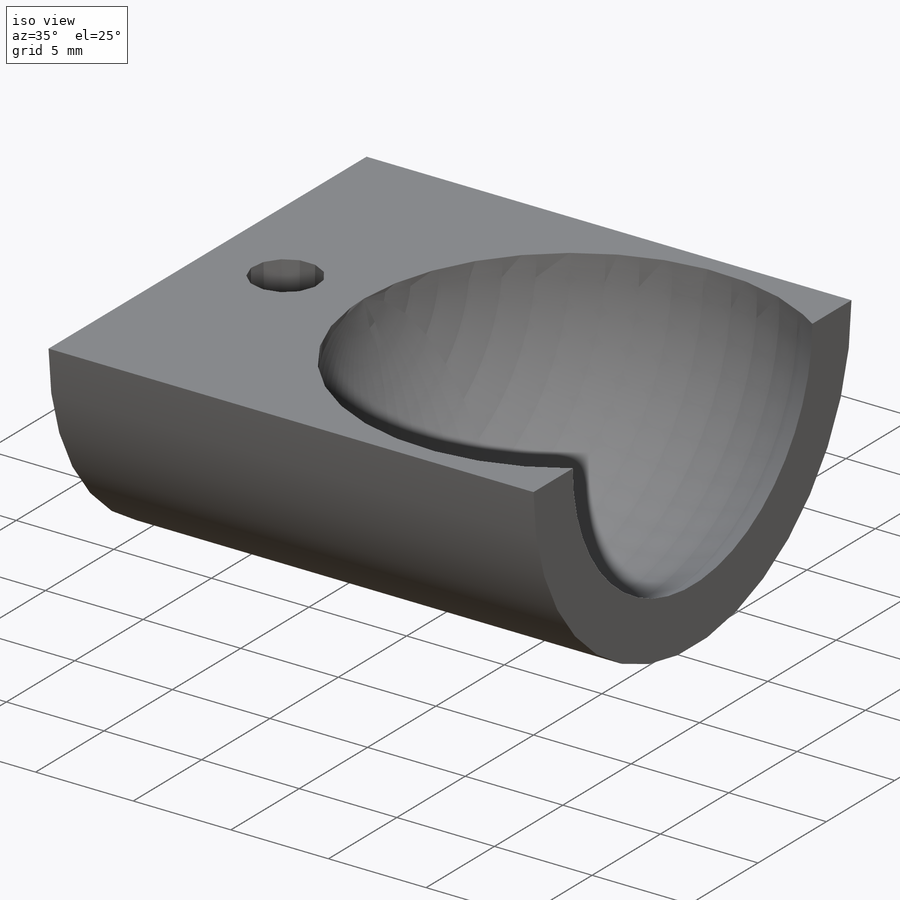
[diagram: iso view]
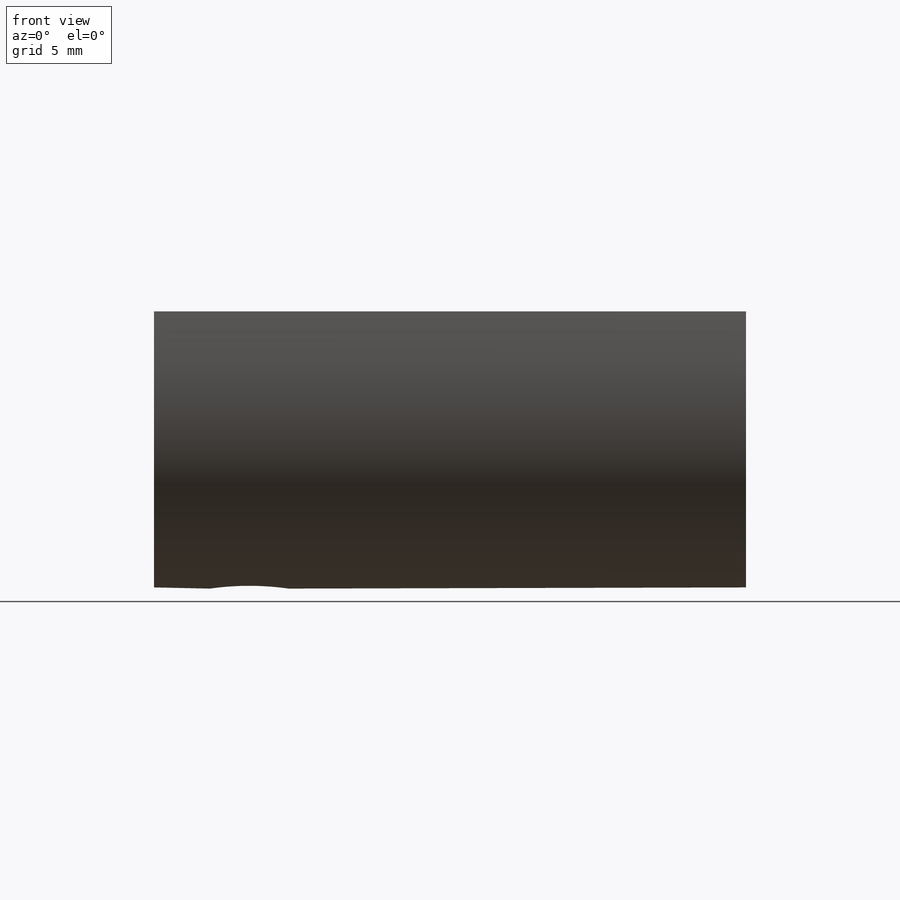
[diagram: front view]
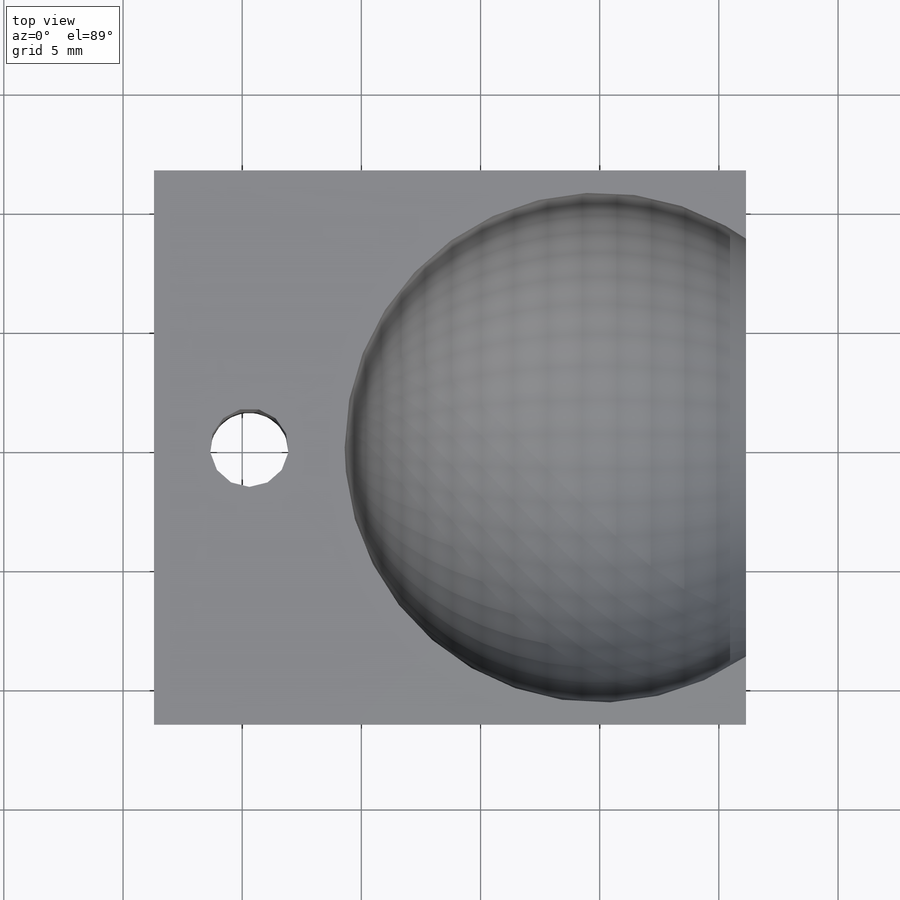
[diagram: top view]
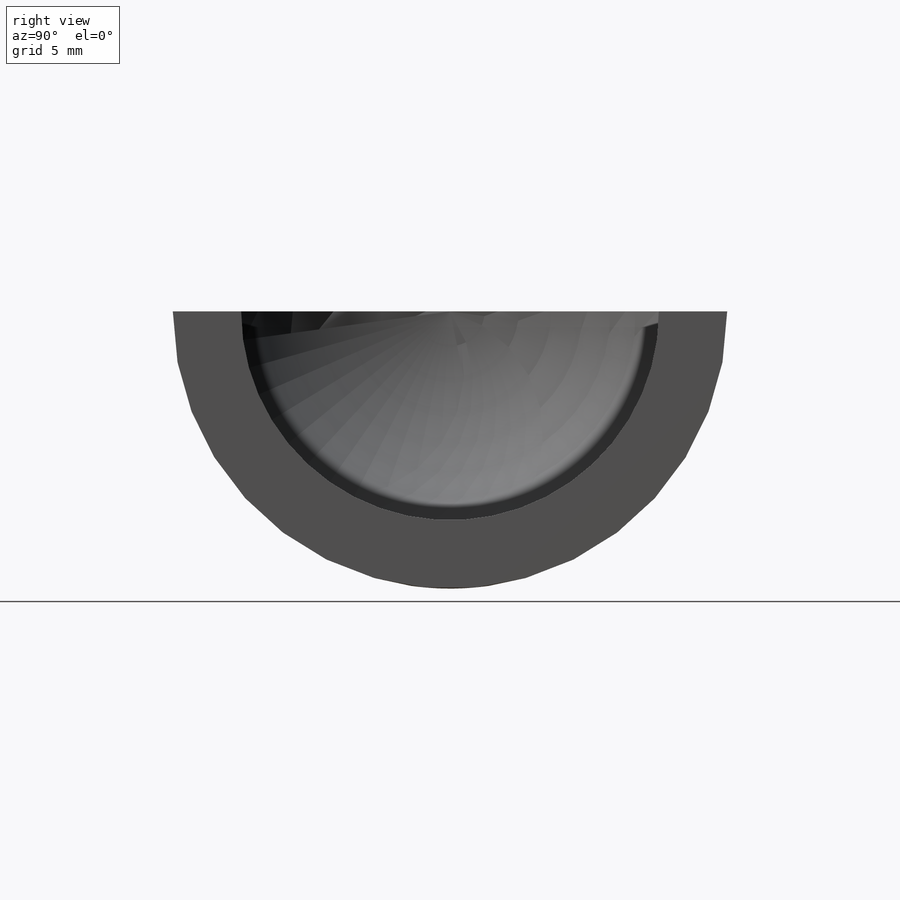
[diagram: right view]
SOLIDWORKS PART (.sldprt)
format: sldprt  version: not decoded by parser v0  size: 696,320 bytes
history: native  units: mm
features: plane x3, sketch x3, cut_extrude x2, material x1, revolve x1 (+9 scaffold rows collapsed)
feature tree (19):
  scaffold x9  (default folders/planes/origin — collapsed)
  material  "Material <sin especificar>"
  plane  "Alzado"
  plane  "Planta"
  plane  "Vista lateral"
  sketch  "Croquis1"  dims[c1.D1=10.7mm c1.D2=20.0mm c2.D1=~11.630777mm c2.D2=8.0mm c3.D1=~45.727272mm c4.D1=~99.059933deg]
  revolve  "Revolución4"  Angle=360deg
  sketch  "Croquis7"  dims[D1=~13.194098mm]
  cut_extrude  "Cortar-Extruir5"  Depth=50mm
  sketch  "Croquis8"  dims[D1=4.0mm]
  cut_extrude  "Cortar-Extruir6"  Depth=50mm
decode coverage: 6 of 6 modeling features carry decoded parameters
note: ~ marks probable driven/reference dimensions
note: suppression state not decoded; provenance and decode notes live in map.json
